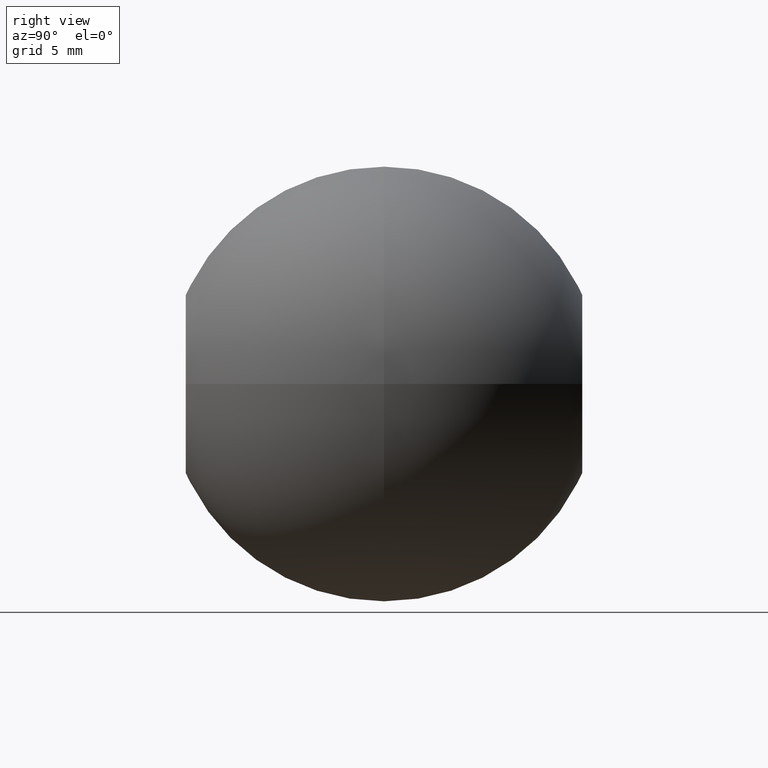
[diagram: clean part render]
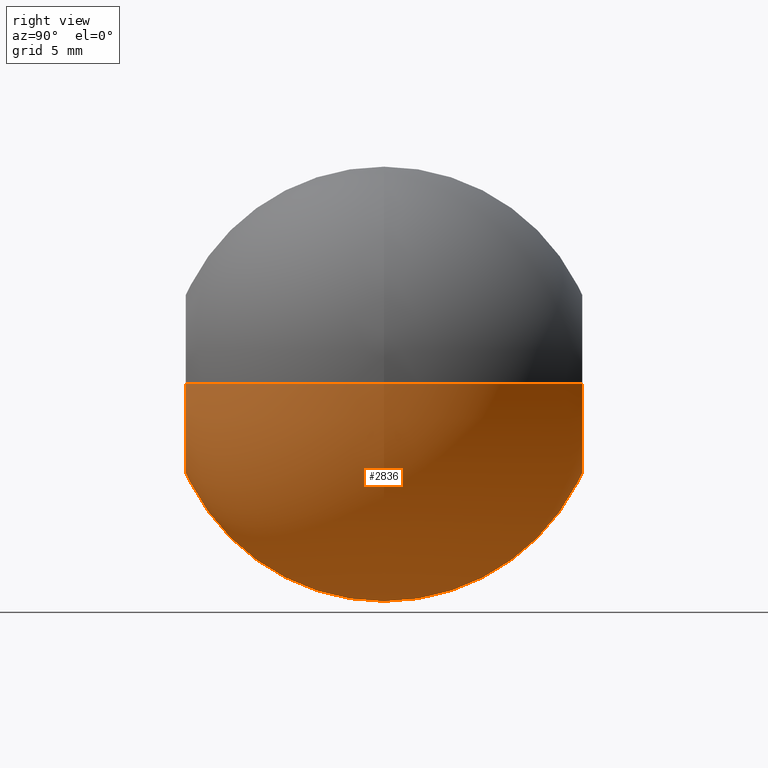
[diagram: same view with one face highlighted and labeled with its STEP entity id]
A machine part, right view. The second image highlights one B-rep face of the part: STEP entity #2836.
In plain terms, the highlighted spherical surface has radius 15 mm.
Its self-contained STEP definition (entity closure, byte-faithful):
#121 = CARTESIAN_POINT ( 'NONE',  ( -6.150000000000002100, -13.68128283458828400, -7.531577814756224000E-016 ) ) ;
#468 = DIRECTION ( 'NONE',  ( -1.000000000000000000, 0.0000000000000000000, -1.224646799147353200E-016 ) ) ;
#903 = CARTESIAN_POINT ( 'NONE',  ( 7.531577814756224000E-016, -13.68128283458828400, -6.150000000000002100 ) ) ;
#1082 = EDGE_CURVE ( 'NONE', #4288, #4336, #4366, .T. ) ;
#1226 = AXIS2_PLACEMENT_3D ( 'NONE', #10159, #5293, #468 ) ;
#1333 = FACE_OUTER_BOUND ( 'NONE', #7935, .T. ) ;
#2082 = CIRCLE ( 'NONE', #2522, 6.150000000000002100 ) ;
#2180 = AXIS2_PLACEMENT_3D ( 'NONE', #3237, #8884, #4059 ) ;
#2522 = AXIS2_PLACEMENT_3D ( 'NONE', #5851, #5887, #5919 ) ;
#2608 = CARTESIAN_POINT ( 'NONE',  ( 0.0000000000000000000, 13.68128283458828400, 0.0000000000000000000 ) ) ;
#2716 = EDGE_CURVE ( 'NONE', #3143, #4288, #2082, .T. ) ;
#2836 = ADVANCED_FACE ( 'NONE', ( #1333 ), #3742, .T. ) ;
#3070 = DIRECTION ( 'NONE',  ( 0.0000000000000000000, 0.0000000000000000000, 1.000000000000000000 ) ) ;
#3143 = VERTEX_POINT ( 'NONE', #6294 ) ;
#3237 = CARTESIAN_POINT ( 'NONE',  ( 0.0000000000000000000, 13.68128283458828400, 0.0000000000000000000 ) ) ;
#3392 = ORIENTED_EDGE ( 'NONE', *, *, #3746, .T. ) ;
#3411 = AXIS2_PLACEMENT_3D ( 'NONE', #2608, #8254, #3424 ) ;
#3424 = DIRECTION ( 'NONE',  ( 0.0000000000000000000, 0.0000000000000000000, 1.000000000000000000 ) ) ;
#3537 = ORIENTED_EDGE ( 'NONE', *, *, #2716, .T. ) ;
#3625 = AXIS2_PLACEMENT_3D ( 'NONE', #8365, #6304, #6339 ) ;
#3742 = SPHERICAL_SURFACE ( 'NONE', #7378, 15.00000000000000200 ) ;
#3746 = EDGE_CURVE ( 'NONE', #4336, #6031, #3995, .T. ) ;
#3964 = CARTESIAN_POINT ( 'NONE',  ( 0.0000000000000000000, 0.0000000000000000000, 0.0000000000000000000 ) ) ;
#3988 = EDGE_CURVE ( 'NONE', #6368, #6031, #8661, .T. ) ;
#3995 = CIRCLE ( 'NONE', #1226, 15.00000000000000200 ) ;
#4059 = DIRECTION ( 'NONE',  ( 0.0000000000000000000, 0.0000000000000000000, 1.000000000000000000 ) ) ;
#4076 = DIRECTION ( 'NONE',  ( 1.000000000000000000, 0.0000000000000000000, 0.0000000000000000000 ) ) ;
#4288 = VERTEX_POINT ( 'NONE', #903 ) ;
#4336 = VERTEX_POINT ( 'NONE', #121 ) ;
#4366 = CIRCLE ( 'NONE', #3625, 6.150000000000002100 ) ;
#4733 = DIRECTION ( 'NONE',  ( 0.0000000000000000000, 0.0000000000000000000, -1.000000000000000000 ) ) ;
#5149 = EDGE_CURVE ( 'NONE', #3143, #9997, #7377, .T. ) ;
#5293 = DIRECTION ( 'NONE',  ( 1.224646799147353200E-016, 0.0000000000000000000, -1.000000000000000000 ) ) ;
#5738 = EDGE_CURVE ( 'NONE', #9997, #6368, #7495, .T. ) ;
#5759 = CARTESIAN_POINT ( 'NONE',  ( 6.150000000000002100, 13.68128283458828400, 0.0000000000000000000 ) ) ;
#5851 = CARTESIAN_POINT ( 'NONE',  ( 0.0000000000000000000, -13.68128283458828400, 0.0000000000000000000 ) ) ;
#5887 = DIRECTION ( 'NONE',  ( -0.0000000000000000000, 1.000000000000000000, -0.0000000000000000000 ) ) ;
#5919 = DIRECTION ( 'NONE',  ( 0.0000000000000000000, 0.0000000000000000000, 1.000000000000000000 ) ) ;
#5978 = ORIENTED_EDGE ( 'NONE', *, *, #5149, .F. ) ;
#6031 = VERTEX_POINT ( 'NONE', #8511 ) ;
#6168 = ORIENTED_EDGE ( 'NONE', *, *, #3988, .F. ) ;
#6294 = CARTESIAN_POINT ( 'NONE',  ( 6.150000000000002100, -13.68128283458828400, 0.0000000000000000000 ) ) ;
#6304 = DIRECTION ( 'NONE',  ( -0.0000000000000000000, 1.000000000000000000, -0.0000000000000000000 ) ) ;
#6339 = DIRECTION ( 'NONE',  ( 0.0000000000000000000, 0.0000000000000000000, 1.000000000000000000 ) ) ;
#6368 = VERTEX_POINT ( 'NONE', #9621 ) ;
#7377 = CIRCLE ( 'NONE', #8547, 15.00000000000000200 ) ;
#7378 = AXIS2_PLACEMENT_3D ( 'NONE', #3964, #4733, #4076 ) ;
#7495 = CIRCLE ( 'NONE', #2180, 6.150000000000002100 ) ;
#7525 = ORIENTED_EDGE ( 'NONE', *, *, #1082, .T. ) ;
#7693 = ORIENTED_EDGE ( 'NONE', *, *, #5738, .F. ) ;
#7900 = CARTESIAN_POINT ( 'NONE',  ( 0.0000000000000000000, 0.0000000000000000000, 0.0000000000000000000 ) ) ;
#7935 = EDGE_LOOP ( 'NONE', ( #7525, #3392, #6168, #7693, #5978, #3537 ) ) ;
#8254 = DIRECTION ( 'NONE',  ( -0.0000000000000000000, 1.000000000000000000, -0.0000000000000000000 ) ) ;
#8365 = CARTESIAN_POINT ( 'NONE',  ( 0.0000000000000000000, -13.68128283458828400, 0.0000000000000000000 ) ) ;
#8511 = CARTESIAN_POINT ( 'NONE',  ( -6.150000000000002100, 13.68128283458828400, -7.531577814756224000E-016 ) ) ;
#8547 = AXIS2_PLACEMENT_3D ( 'NONE', #7900, #3070, #8722 ) ;
#8661 = CIRCLE ( 'NONE', #3411, 6.150000000000002100 ) ;
#8722 = DIRECTION ( 'NONE',  ( 1.000000000000000000, 0.0000000000000000000, 0.0000000000000000000 ) ) ;
#8884 = DIRECTION ( 'NONE',  ( -0.0000000000000000000, 1.000000000000000000, -0.0000000000000000000 ) ) ;
#9621 = CARTESIAN_POINT ( 'NONE',  ( 7.531577814756224000E-016, 13.68128283458828400, -6.150000000000002100 ) ) ;
#9997 = VERTEX_POINT ( 'NONE', #5759 ) ;
#10159 = CARTESIAN_POINT ( 'NONE',  ( 0.0000000000000000000, 0.0000000000000000000, 0.0000000000000000000 ) ) ;